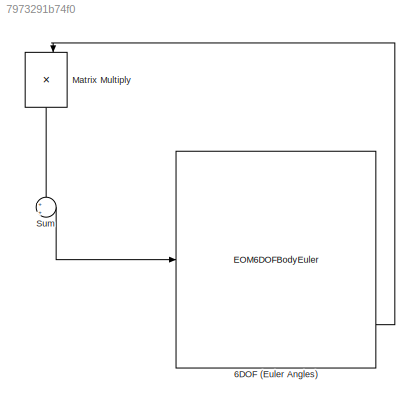
MODEL slx_7973291b74f0
KIND model
CONFIG AbsTol = auto
CONFIG EnableMultiTasking = off
CONFIG FixedStep = auto
CONFIG MaxStep = auto
CONFIG MinStep = auto
CONFIG RelTol = 1e-3
CONFIG SampleTimeConstraint = Unconstrained
CONFIG SolverName = VariableStepAuto
CONFIG StartTime = 0.0
CONFIG StopTime = 10.0
BLOCK [EOM6DOFBodyEuler] 6DOF (Euler Angles)
BLOCK [Product] Matrix Multiply
  Multiplication = Matrix(*)
  NameLocation = left
BLOCK [Sum] Sum
  Inputs = +|+
LINE 6DOF (Euler Angles):4 -> Matrix Multiply:2
LINE Matrix Multiply:1 -> Sum:1
LINE Sum:1 -> 6DOF (Euler Angles):1
